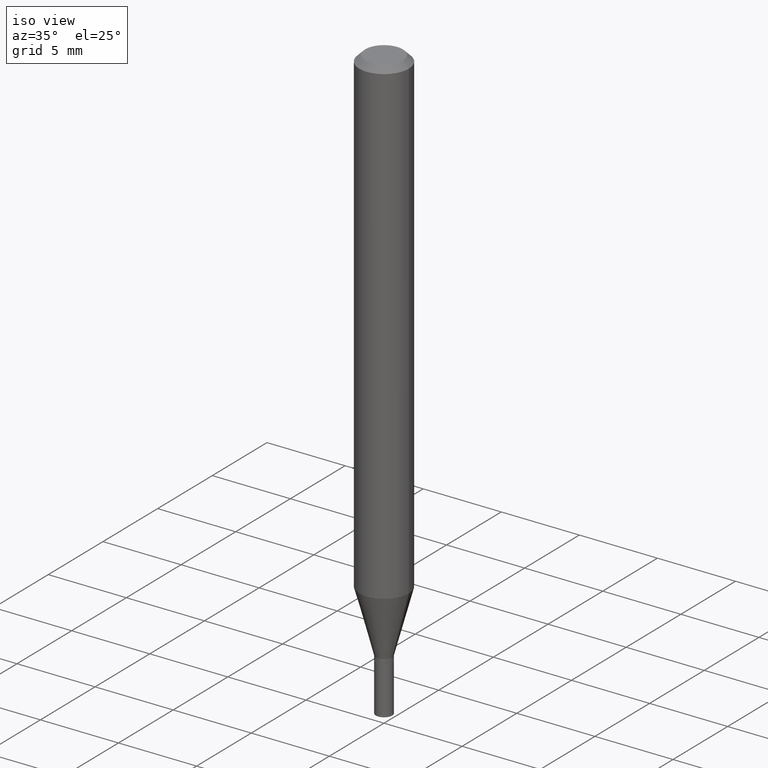
[diagram: clean part render]
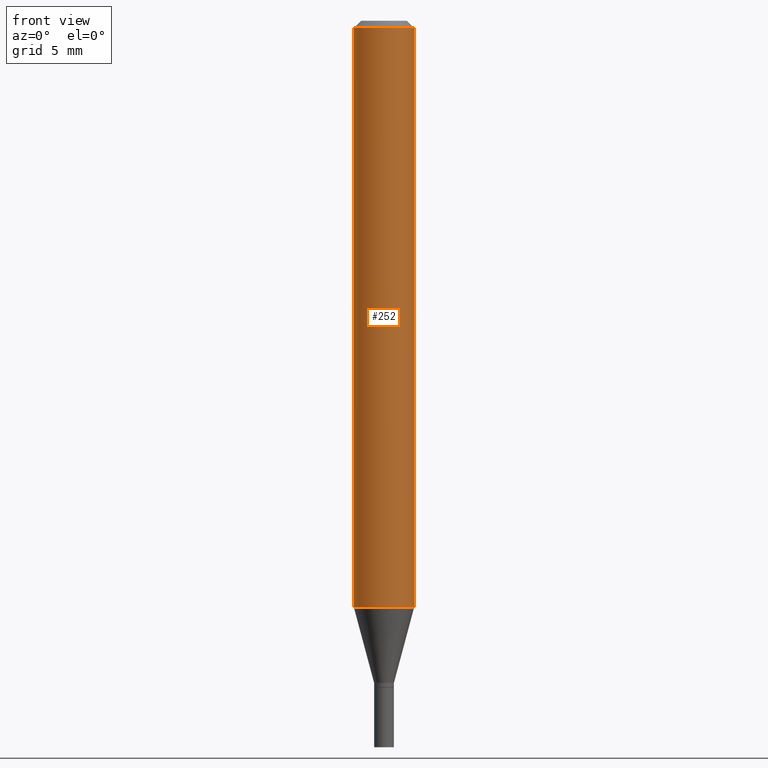
[diagram: tour spotlight — one face highlighted and labeled with its STEP entity id]
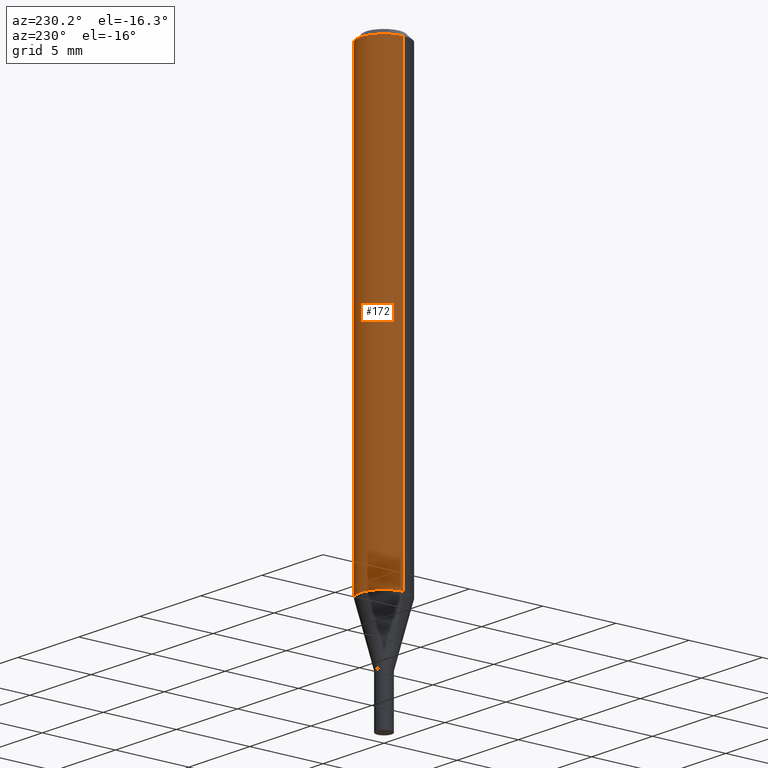
[diagram: tour spotlight — one face highlighted and labeled with its STEP entity id]
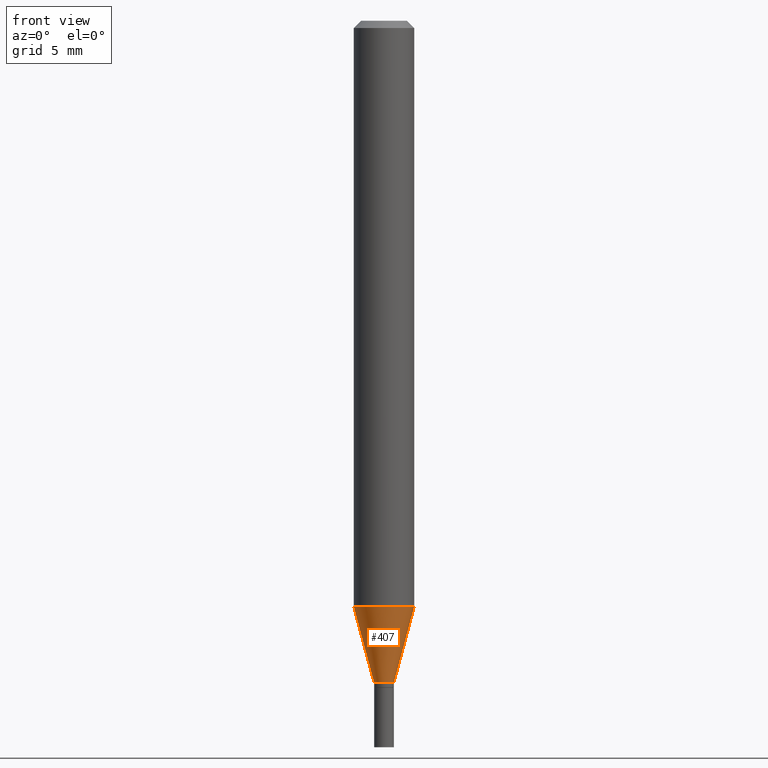
[diagram: tour spotlight — one face highlighted and labeled with its STEP entity id]
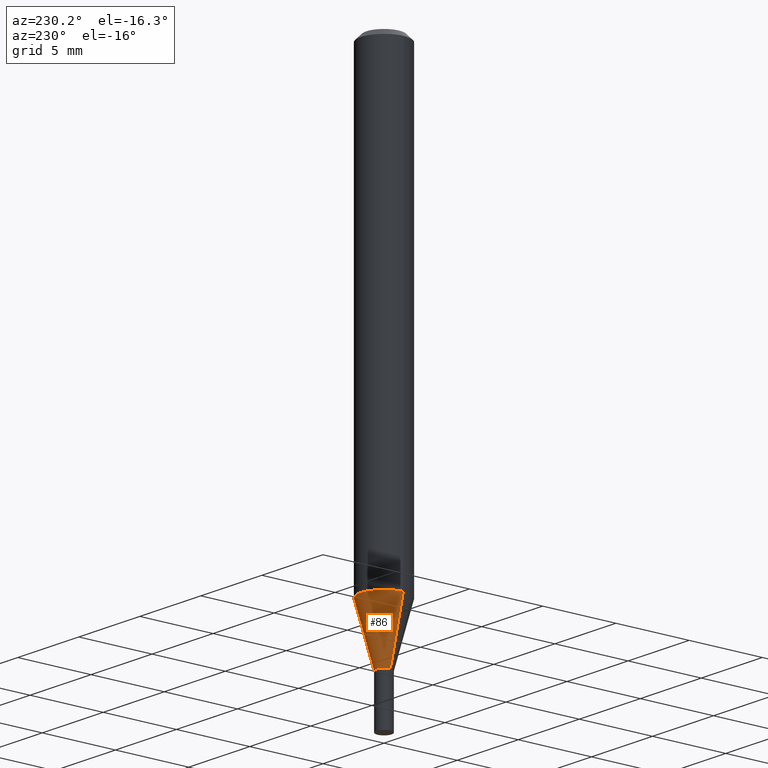
[diagram: tour spotlight — one face highlighted and labeled with its STEP entity id]
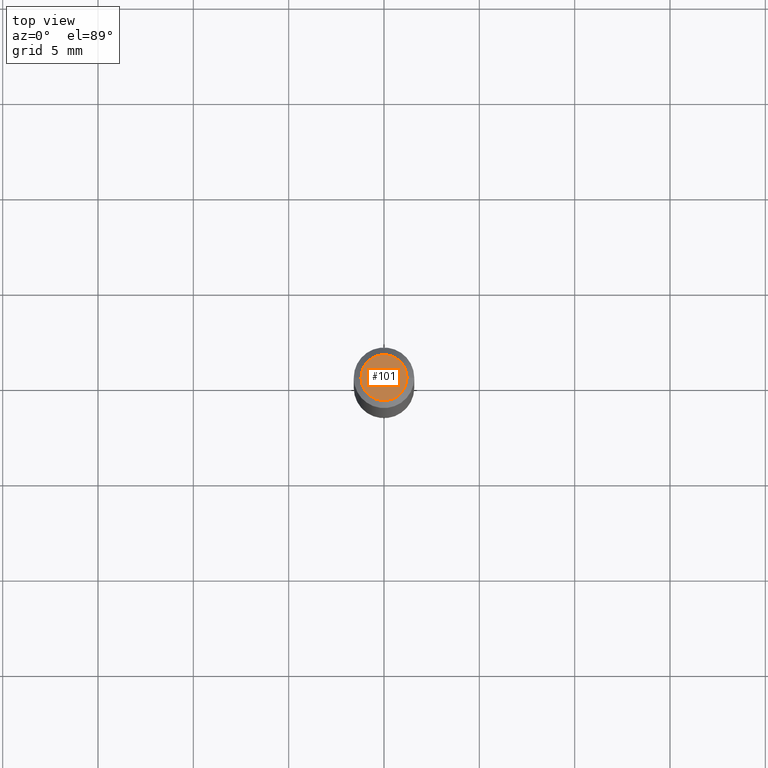
[diagram: tour spotlight — one face highlighted and labeled with its STEP entity id]
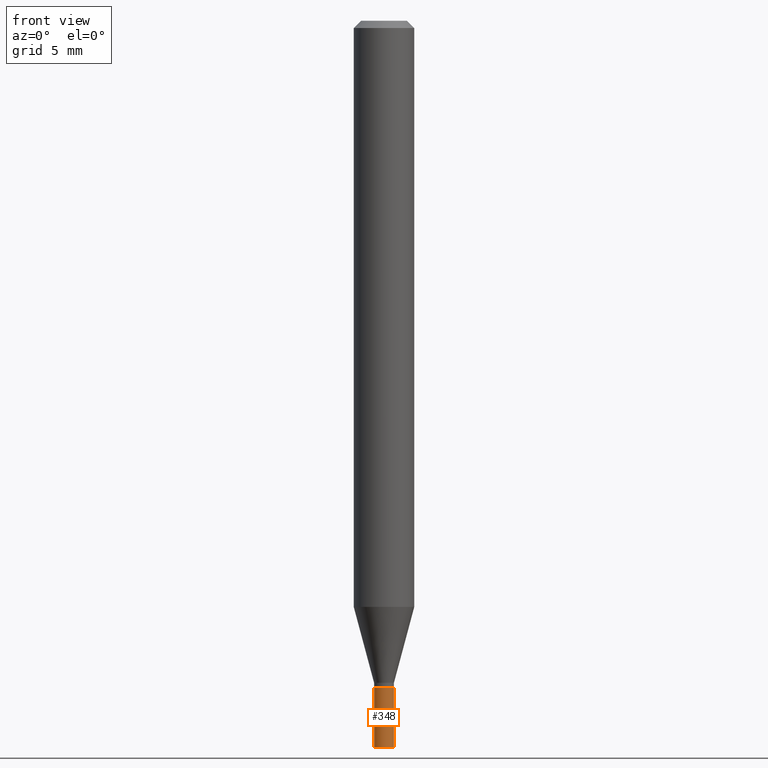
[diagram: tour spotlight — one face highlighted and labeled with its STEP entity id]
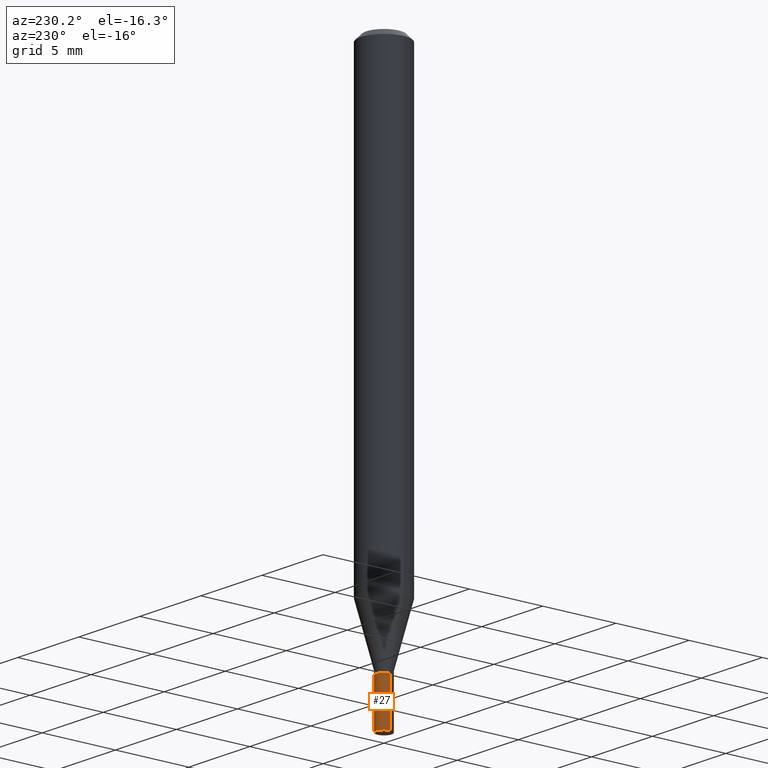
[diagram: tour spotlight — one face highlighted and labeled with its STEP entity id]
A machine part: a face-by-face anatomy tour. The part has 16 B-rep faces; the first image is the clean iso view, then the 7 largest visible faces are spotlighted one at a time (largest first), each with its STEP entity span.

Face 1 — front view, entity #252. In plain terms, the highlighted cylindrical surface (edge-blend (fillet) strip) has radius 1.5875 mm, axis along (-0, 0, 1).
Definition (entity closure, byte-faithful):
#19 = DIRECTION ( 'NONE',  ( 1.000000000000000000, -6.982962677686266711E-15, 0.000000000000000000 ) ) ;
#21 = VERTEX_POINT ( 'NONE', #265 ) ;
#23 = AXIS2_PLACEMENT_3D ( 'NONE', #129, #383, #19 ) ;
#34 = CARTESIAN_POINT ( 'NONE',  ( 2.959638077068758052E-29, -4.225578788688450652E-15, -1.210253866082107610 ) ) ;
#43 = CARTESIAN_POINT ( 'NONE',  ( -0.06250000000000000000, -1.694886294535486249E-15, -0.01499999999999999944 ) ) ;
#52 = ORIENTED_EDGE ( 'NONE', *, *, #400, .F. ) ;
#61 = CARTESIAN_POINT ( 'NONE',  ( 0.06250000000000000000, -4.364351673553916694E-16, 3.047610484872459871E-30 ) ) ;
#80 = CARTESIAN_POINT ( 'NONE',  ( 0.06250000000000000000, -4.888073874380388472E-16, -0.01499999999999999944 ) ) ;
#84 = DIRECTION ( 'NONE',  ( -2.445468806185136597E-29, 3.491481338843145583E-15, 1.000000000000000000 ) ) ;
#88 = AXIS2_PLACEMENT_3D ( 'NONE', #131, #84, #309 ) ;
#90 = CYLINDRICAL_SURFACE ( 'NONE', #88, 0.06250000000000000000 ) ;
#102 = VERTEX_POINT ( 'NONE', #43 ) ;
#112 = CIRCLE ( 'NONE', #350, 0.06250000000000000000 ) ;
#128 = DIRECTION ( 'NONE',  ( -2.445468806185136877E-29, 3.491481338843145188E-15, 1.000000000000000000 ) ) ;
#129 = CARTESIAN_POINT ( 'NONE',  ( 3.668203209277705088E-31, -5.237222008264718399E-17, -0.01499999999999999944 ) ) ;
#131 = CARTESIAN_POINT ( 'NONE',  ( 0.000000000000000000, 0.000000000000000000, 0.000000000000000000 ) ) ;
#158 = CARTESIAN_POINT ( 'NONE',  ( -0.06249999999999999306, -3.781489578838388036E-15, -1.210253866082107610 ) ) ;
#174 = EDGE_LOOP ( 'NONE', ( #52, #313, #336, #341 ) ) ;
#179 = DIRECTION ( 'NONE',  ( -2.445468806185136597E-29, 3.491481338843145583E-15, 1.000000000000000000 ) ) ;
#195 = EDGE_CURVE ( 'NONE', #102, #459, #268, .T. ) ;
#215 = CARTESIAN_POINT ( 'NONE',  ( -0.06250000000000000000, 4.440892098500626162E-16, -3.074334431409316114E-30 ) ) ;
#248 = VECTOR ( 'NONE', #128, 39.37007874015748143 ) ;
#252 = ADVANCED_FACE ( 'NONE', ( #447 ), #90, .T. ) ;
#265 = CARTESIAN_POINT ( 'NONE',  ( 0.06249999999999999306, -4.662013956043841533E-15, -1.210253866082107610 ) ) ;
#268 = CIRCLE ( 'NONE', #23, 0.06250000000000000000 ) ;
#309 = DIRECTION ( 'NONE',  ( 1.000000000000000000, -6.982962677686266711E-15, 4.876176775795935793E-29 ) ) ;
#310 = LINE ( 'NONE', #61, #248 ) ;
#313 = ORIENTED_EDGE ( 'NONE', *, *, #389, .T. ) ;
#323 = EDGE_CURVE ( 'NONE', #21, #459, #310, .T. ) ;
#326 = VECTOR ( 'NONE', #334, 39.37007874015748143 ) ;
#334 = DIRECTION ( 'NONE',  ( -2.445468806185136877E-29, 3.491481338843145188E-15, 1.000000000000000000 ) ) ;
#336 = ORIENTED_EDGE ( 'NONE', *, *, #323, .T. ) ;
#341 = ORIENTED_EDGE ( 'NONE', *, *, #195, .F. ) ;
#350 = AXIS2_PLACEMENT_3D ( 'NONE', #34, #179, #461 ) ;
#383 = DIRECTION ( 'NONE',  ( -2.445468806185136597E-29, 3.491481338843145583E-15, 1.000000000000000000 ) ) ;
#389 = EDGE_CURVE ( 'NONE', #462, #21, #112, .T. ) ;
#393 = LINE ( 'NONE', #215, #326 ) ;
#400 = EDGE_CURVE ( 'NONE', #462, #102, #393, .T. ) ;
#447 = FACE_OUTER_BOUND ( 'NONE', #174, .T. ) ;
#459 = VERTEX_POINT ( 'NONE', #80 ) ;
#461 = DIRECTION ( 'NONE',  ( 1.000000000000000000, -6.982962677686262766E-15, 0.000000000000000000 ) ) ;
#462 = VERTEX_POINT ( 'NONE', #158 ) ;

Face 2 — auxiliary view, entity #172. In plain terms, the highlighted cylindrical surface (edge-blend (fillet) strip) has radius 1.5875 mm, axis along (-0, 0, 1).
Definition (entity closure, byte-faithful):
#14 = AXIS2_PLACEMENT_3D ( 'NONE', #401, #83, #229 ) ;
#15 = CIRCLE ( 'NONE', #458, 0.06250000000000000000 ) ;
#21 = VERTEX_POINT ( 'NONE', #265 ) ;
#37 = EDGE_CURVE ( 'NONE', #459, #102, #390, .T. ) ;
#43 = CARTESIAN_POINT ( 'NONE',  ( -0.06250000000000000000, -1.694886294535486249E-15, -0.01499999999999999944 ) ) ;
#49 = DIRECTION ( 'NONE',  ( 1.000000000000000000, -6.982962677686262766E-15, 0.000000000000000000 ) ) ;
#61 = CARTESIAN_POINT ( 'NONE',  ( 0.06250000000000000000, -4.364351673553916694E-16, 3.047610484872459871E-30 ) ) ;
#80 = CARTESIAN_POINT ( 'NONE',  ( 0.06250000000000000000, -4.888073874380388472E-16, -0.01499999999999999944 ) ) ;
#83 = DIRECTION ( 'NONE',  ( -2.445468806185136597E-29, 3.491481338843145583E-15, 1.000000000000000000 ) ) ;
#102 = VERTEX_POINT ( 'NONE', #43 ) ;
#128 = DIRECTION ( 'NONE',  ( -2.445468806185136877E-29, 3.491481338843145188E-15, 1.000000000000000000 ) ) ;
#150 = EDGE_LOOP ( 'NONE', ( #214, #392, #361, #398 ) ) ;
#158 = CARTESIAN_POINT ( 'NONE',  ( -0.06249999999999999306, -3.781489578838388036E-15, -1.210253866082107610 ) ) ;
#166 = CARTESIAN_POINT ( 'NONE',  ( 2.959638077068758052E-29, -4.225578788688450652E-15, -1.210253866082107610 ) ) ;
#172 = ADVANCED_FACE ( 'NONE', ( #302 ), #193, .T. ) ;
#193 = CYLINDRICAL_SURFACE ( 'NONE', #349, 0.06250000000000000000 ) ;
#204 = EDGE_CURVE ( 'NONE', #21, #462, #15, .T. ) ;
#214 = ORIENTED_EDGE ( 'NONE', *, *, #204, .T. ) ;
#215 = CARTESIAN_POINT ( 'NONE',  ( -0.06250000000000000000, 4.440892098500626162E-16, -3.074334431409316114E-30 ) ) ;
#229 = DIRECTION ( 'NONE',  ( 1.000000000000000000, -6.982962677686266711E-15, 0.000000000000000000 ) ) ;
#248 = VECTOR ( 'NONE', #128, 39.37007874015748143 ) ;
#265 = CARTESIAN_POINT ( 'NONE',  ( 0.06249999999999999306, -4.662013956043841533E-15, -1.210253866082107610 ) ) ;
#281 = CARTESIAN_POINT ( 'NONE',  ( 0.000000000000000000, 0.000000000000000000, 0.000000000000000000 ) ) ;
#300 = DIRECTION ( 'NONE',  ( -2.445468806185136597E-29, 3.491481338843145583E-15, 1.000000000000000000 ) ) ;
#302 = FACE_OUTER_BOUND ( 'NONE', #150, .T. ) ;
#310 = LINE ( 'NONE', #61, #248 ) ;
#323 = EDGE_CURVE ( 'NONE', #21, #459, #310, .T. ) ;
#326 = VECTOR ( 'NONE', #334, 39.37007874015748143 ) ;
#334 = DIRECTION ( 'NONE',  ( -2.445468806185136877E-29, 3.491481338843145188E-15, 1.000000000000000000 ) ) ;
#349 = AXIS2_PLACEMENT_3D ( 'NONE', #281, #419, #351 ) ;
#351 = DIRECTION ( 'NONE',  ( 1.000000000000000000, -6.982962677686266711E-15, 4.876176775795935793E-29 ) ) ;
#361 = ORIENTED_EDGE ( 'NONE', *, *, #37, .F. ) ;
#390 = CIRCLE ( 'NONE', #14, 0.06250000000000000000 ) ;
#392 = ORIENTED_EDGE ( 'NONE', *, *, #400, .T. ) ;
#393 = LINE ( 'NONE', #215, #326 ) ;
#398 = ORIENTED_EDGE ( 'NONE', *, *, #323, .F. ) ;
#400 = EDGE_CURVE ( 'NONE', #462, #102, #393, .T. ) ;
#401 = CARTESIAN_POINT ( 'NONE',  ( 3.668203209277705088E-31, -5.237222008264718399E-17, -0.01499999999999999944 ) ) ;
#419 = DIRECTION ( 'NONE',  ( -2.445468806185136597E-29, 3.491481338843145583E-15, 1.000000000000000000 ) ) ;
#458 = AXIS2_PLACEMENT_3D ( 'NONE', #166, #300, #49 ) ;
#459 = VERTEX_POINT ( 'NONE', #80 ) ;
#462 = VERTEX_POINT ( 'NONE', #158 ) ;

Face 3 — front view, entity #407. In plain terms, the highlighted conical surface has half-angle 15 deg.
Definition (entity closure, byte-faithful):
#5 = EDGE_CURVE ( 'NONE', #395, #257, #318, .T. ) ;
#21 = VERTEX_POINT ( 'NONE', #265 ) ;
#25 = EDGE_LOOP ( 'NONE', ( #325, #217, #198, #67 ) ) ;
#34 = CARTESIAN_POINT ( 'NONE',  ( 2.959638077068758052E-29, -4.225578788688450652E-15, -1.210253866082107610 ) ) ;
#50 = CARTESIAN_POINT ( 'NONE',  ( -0.02049999999999992453, -4.627193729367760599E-15, -1.367000000000000215 ) ) ;
#67 = ORIENTED_EDGE ( 'NONE', *, *, #389, .F. ) ;
#81 = CARTESIAN_POINT ( 'NONE',  ( 3.342955858055081921E-29, -4.772854990198580872E-15, -1.367000000000000215 ) ) ;
#85 = DIRECTION ( 'NONE',  ( 0.2588190451025216277, 1.565188264969619995E-15, 0.9659258262890679791 ) ) ;
#112 = CIRCLE ( 'NONE', #350, 0.06250000000000000000 ) ;
#133 = DIRECTION ( 'NONE',  ( -0.2588190451025216277, 5.211531920934551831E-15, 0.9659258262890679791 ) ) ;
#147 = CONICAL_SURFACE ( 'NONE', #205, 0.02049999999999992453, 0.2617993877991502960 ) ;
#158 = CARTESIAN_POINT ( 'NONE',  ( -0.06249999999999999306, -3.781489578838388036E-15, -1.210253866082107610 ) ) ;
#161 = DIRECTION ( 'NONE',  ( -2.445468806185136597E-29, 3.491481338843145583E-15, 1.000000000000000000 ) ) ;
#179 = DIRECTION ( 'NONE',  ( -2.445468806185136597E-29, 3.491481338843145583E-15, 1.000000000000000000 ) ) ;
#185 = VECTOR ( 'NONE', #133, 39.37007874015748143 ) ;
#198 = ORIENTED_EDGE ( 'NONE', *, *, #416, .T. ) ;
#205 = AXIS2_PLACEMENT_3D ( 'NONE', #448, #161, #381 ) ;
#217 = ORIENTED_EDGE ( 'NONE', *, *, #5, .T. ) ;
#237 = CARTESIAN_POINT ( 'NONE',  ( 0.02049999999999992453, -4.916005725091148898E-15, -1.367000000000000215 ) ) ;
#246 = AXIS2_PLACEMENT_3D ( 'NONE', #81, #266, #408 ) ;
#257 = VERTEX_POINT ( 'NONE', #311 ) ;
#265 = CARTESIAN_POINT ( 'NONE',  ( 0.06249999999999999306, -4.662013956043841533E-15, -1.210253866082107610 ) ) ;
#266 = DIRECTION ( 'NONE',  ( -2.445468806185136597E-29, 3.491481338843145583E-15, 1.000000000000000000 ) ) ;
#288 = CARTESIAN_POINT ( 'NONE',  ( -0.02049999999999992453, -4.204341654103073529E-15, -1.367000000000000215 ) ) ;
#311 = CARTESIAN_POINT ( 'NONE',  ( 0.02049999999999992453, -4.916005725091148898E-15, -1.367000000000000215 ) ) ;
#318 = CIRCLE ( 'NONE', #246, 0.02049999999999992453 ) ;
#325 = ORIENTED_EDGE ( 'NONE', *, *, #464, .F. ) ;
#337 = FACE_OUTER_BOUND ( 'NONE', #25, .T. ) ;
#350 = AXIS2_PLACEMENT_3D ( 'NONE', #34, #179, #461 ) ;
#377 = VECTOR ( 'NONE', #85, 39.37007874015748143 ) ;
#381 = DIRECTION ( 'NONE',  ( 1.000000000000000000, -6.982962677686288010E-15, 0.000000000000000000 ) ) ;
#389 = EDGE_CURVE ( 'NONE', #462, #21, #112, .T. ) ;
#395 = VERTEX_POINT ( 'NONE', #288 ) ;
#404 = LINE ( 'NONE', #237, #377 ) ;
#407 = ADVANCED_FACE ( 'NONE', ( #337 ), #147, .T. ) ;
#408 = DIRECTION ( 'NONE',  ( 1.000000000000000000, -6.982962677686288010E-15, 0.000000000000000000 ) ) ;
#414 = LINE ( 'NONE', #50, #185 ) ;
#416 = EDGE_CURVE ( 'NONE', #257, #21, #404, .T. ) ;
#448 = CARTESIAN_POINT ( 'NONE',  ( 3.342955858055081921E-29, -4.772854990198580872E-15, -1.367000000000000215 ) ) ;
#461 = DIRECTION ( 'NONE',  ( 1.000000000000000000, -6.982962677686262766E-15, 0.000000000000000000 ) ) ;
#462 = VERTEX_POINT ( 'NONE', #158 ) ;
#464 = EDGE_CURVE ( 'NONE', #395, #462, #414, .T. ) ;

Face 4 — auxiliary view, entity #86. In plain terms, the highlighted conical surface has half-angle 15 deg.
Definition (entity closure, byte-faithful):
#3 = ORIENTED_EDGE ( 'NONE', *, *, #204, .F. ) ;
#11 = DIRECTION ( 'NONE',  ( 1.000000000000000000, -6.982962677686288010E-15, 0.000000000000000000 ) ) ;
#15 = CIRCLE ( 'NONE', #458, 0.06250000000000000000 ) ;
#21 = VERTEX_POINT ( 'NONE', #265 ) ;
#29 = CARTESIAN_POINT ( 'NONE',  ( 3.342955858055081921E-29, -4.772854990198580872E-15, -1.367000000000000215 ) ) ;
#49 = DIRECTION ( 'NONE',  ( 1.000000000000000000, -6.982962677686262766E-15, 0.000000000000000000 ) ) ;
#50 = CARTESIAN_POINT ( 'NONE',  ( -0.02049999999999992453, -4.627193729367760599E-15, -1.367000000000000215 ) ) ;
#74 = ORIENTED_EDGE ( 'NONE', *, *, #464, .T. ) ;
#85 = DIRECTION ( 'NONE',  ( 0.2588190451025216277, 1.565188264969619995E-15, 0.9659258262890679791 ) ) ;
#86 = ADVANCED_FACE ( 'NONE', ( #298 ), #267, .T. ) ;
#95 = ORIENTED_EDGE ( 'NONE', *, *, #416, .F. ) ;
#133 = DIRECTION ( 'NONE',  ( -0.2588190451025216277, 5.211531920934551831E-15, 0.9659258262890679791 ) ) ;
#158 = CARTESIAN_POINT ( 'NONE',  ( -0.06249999999999999306, -3.781489578838388036E-15, -1.210253866082107610 ) ) ;
#166 = CARTESIAN_POINT ( 'NONE',  ( 2.959638077068758052E-29, -4.225578788688450652E-15, -1.210253866082107610 ) ) ;
#180 = EDGE_LOOP ( 'NONE', ( #327, #74, #3, #95 ) ) ;
#185 = VECTOR ( 'NONE', #133, 39.37007874015748143 ) ;
#204 = EDGE_CURVE ( 'NONE', #21, #462, #15, .T. ) ;
#219 = DIRECTION ( 'NONE',  ( -2.445468806185136597E-29, 3.491481338843145583E-15, 1.000000000000000000 ) ) ;
#222 = AXIS2_PLACEMENT_3D ( 'NONE', #29, #411, #354 ) ;
#237 = CARTESIAN_POINT ( 'NONE',  ( 0.02049999999999992453, -4.916005725091148898E-15, -1.367000000000000215 ) ) ;
#257 = VERTEX_POINT ( 'NONE', #311 ) ;
#265 = CARTESIAN_POINT ( 'NONE',  ( 0.06249999999999999306, -4.662013956043841533E-15, -1.210253866082107610 ) ) ;
#267 = CONICAL_SURFACE ( 'NONE', #291, 0.02049999999999992453, 0.2617993877991502960 ) ;
#269 = CARTESIAN_POINT ( 'NONE',  ( 3.342955858055081921E-29, -4.772854990198580872E-15, -1.367000000000000215 ) ) ;
#288 = CARTESIAN_POINT ( 'NONE',  ( -0.02049999999999992453, -4.204341654103073529E-15, -1.367000000000000215 ) ) ;
#291 = AXIS2_PLACEMENT_3D ( 'NONE', #269, #219, #11 ) ;
#298 = FACE_OUTER_BOUND ( 'NONE', #180, .T. ) ;
#300 = DIRECTION ( 'NONE',  ( -2.445468806185136597E-29, 3.491481338843145583E-15, 1.000000000000000000 ) ) ;
#311 = CARTESIAN_POINT ( 'NONE',  ( 0.02049999999999992453, -4.916005725091148898E-15, -1.367000000000000215 ) ) ;
#327 = ORIENTED_EDGE ( 'NONE', *, *, #357, .T. ) ;
#354 = DIRECTION ( 'NONE',  ( 1.000000000000000000, -6.982962677686288010E-15, 0.000000000000000000 ) ) ;
#357 = EDGE_CURVE ( 'NONE', #257, #395, #397, .T. ) ;
#377 = VECTOR ( 'NONE', #85, 39.37007874015748143 ) ;
#395 = VERTEX_POINT ( 'NONE', #288 ) ;
#397 = CIRCLE ( 'NONE', #222, 0.02049999999999992453 ) ;
#404 = LINE ( 'NONE', #237, #377 ) ;
#411 = DIRECTION ( 'NONE',  ( -2.445468806185136597E-29, 3.491481338843145583E-15, 1.000000000000000000 ) ) ;
#414 = LINE ( 'NONE', #50, #185 ) ;
#416 = EDGE_CURVE ( 'NONE', #257, #21, #404, .T. ) ;
#458 = AXIS2_PLACEMENT_3D ( 'NONE', #166, #300, #49 ) ;
#462 = VERTEX_POINT ( 'NONE', #158 ) ;
#464 = EDGE_CURVE ( 'NONE', #395, #462, #414, .T. ) ;

Face 5 — top view, entity #101. In plain terms, the highlighted planar face has unit normal (0, -0, -1).
Definition (entity closure, byte-faithful):
#6 = AXIS2_PLACEMENT_3D ( 'NONE', #271, #225, #75 ) ;
#40 = VERTEX_POINT ( 'NONE', #445 ) ;
#75 = DIRECTION ( 'NONE',  ( -1.000000000000000000, 6.982962677686265922E-15, -4.876176775795935793E-29 ) ) ;
#78 = CIRCLE ( 'NONE', #465, 0.04749999999999999362 ) ;
#101 = ADVANCED_FACE ( 'NONE', ( #338 ), #273, .F. ) ;
#109 = EDGE_CURVE ( 'NONE', #40, #466, #331, .T. ) ;
#145 = EDGE_LOOP ( 'NONE', ( #296, #324 ) ) ;
#188 = CARTESIAN_POINT ( 'NONE',  ( 4.865611903635008365E-45, -6.946804277620623666E-31, -1.989643822619527736E-16 ) ) ;
#192 = DIRECTION ( 'NONE',  ( -2.445468806185136597E-29, 3.491481338843145583E-15, 1.000000000000000000 ) ) ;
#225 = DIRECTION ( 'NONE',  ( 2.438088387897960049E-29, -3.491481338843145188E-15, -1.000000000000000000 ) ) ;
#230 = CARTESIAN_POINT ( 'NONE',  ( 4.865611903635008365E-45, -6.946804277620623666E-31, -1.989643822619527736E-16 ) ) ;
#232 = AXIS2_PLACEMENT_3D ( 'NONE', #188, #192, #373 ) ;
#258 = EDGE_CURVE ( 'NONE', #466, #40, #78, .T. ) ;
#271 = CARTESIAN_POINT ( 'NONE',  ( 3.316907271900976096E-16, 0.04749999999999999362, -2.653275547260257586E-16 ) ) ;
#273 = PLANE ( 'NONE',  #6 ) ;
#296 = ORIENTED_EDGE ( 'NONE', *, *, #258, .T. ) ;
#307 = DIRECTION ( 'NONE',  ( 1.000000000000000000, -6.982962677686267499E-15, 4.852736867747366768E-29 ) ) ;
#324 = ORIENTED_EDGE ( 'NONE', *, *, #109, .T. ) ;
#331 = CIRCLE ( 'NONE', #232, 0.04749999999999999362 ) ;
#338 = FACE_OUTER_BOUND ( 'NONE', #145, .T. ) ;
#373 = DIRECTION ( 'NONE',  ( 1.000000000000000000, -6.982962677686267499E-15, 4.852736867747366768E-29 ) ) ;
#413 = DIRECTION ( 'NONE',  ( -2.445468806185136597E-29, 3.491481338843145583E-15, 1.000000000000000000 ) ) ;
#444 = CARTESIAN_POINT ( 'NONE',  ( -0.04749999999999999362, 3.578768372314206562E-16, -1.989643822619551895E-16 ) ) ;
#445 = CARTESIAN_POINT ( 'NONE',  ( 0.04749999999999999362, -4.035134999187581581E-16, -1.989643822619502098E-16 ) ) ;
#465 = AXIS2_PLACEMENT_3D ( 'NONE', #230, #413, #307 ) ;
#466 = VERTEX_POINT ( 'NONE', #444 ) ;

Face 6 — front view, entity #348. In plain terms, the highlighted cylindrical surface (edge-blend (fillet) strip) has radius 0.5207 mm, axis along (-0, 0, 1).
Definition (entity closure, byte-faithful):
#7 = DIRECTION ( 'NONE',  ( -2.445468806185136597E-29, 3.491481338843145583E-15, 1.000000000000000000 ) ) ;
#13 = CARTESIAN_POINT ( 'NONE',  ( 3.367410546116933466E-29, -4.807769803587011733E-15, -1.377000000000000002 ) ) ;
#36 = VERTEX_POINT ( 'NONE', #330 ) ;
#45 = AXIS2_PLACEMENT_3D ( 'NONE', #278, #201, #344 ) ;
#59 = DIRECTION ( 'NONE',  ( -2.445468806185136877E-29, 3.491481338843145188E-15, 1.000000000000000000 ) ) ;
#98 = CIRCLE ( 'NONE', #45, 0.02050000000000000086 ) ;
#99 = CYLINDRICAL_SURFACE ( 'NONE', #305, 0.02050000000000000086 ) ;
#107 = ORIENTED_EDGE ( 'NONE', *, *, #177, .T. ) ;
#125 = EDGE_CURVE ( 'NONE', #261, #135, #355, .T. ) ;
#130 = AXIS2_PLACEMENT_3D ( 'NONE', #13, #7, #159 ) ;
#135 = VERTEX_POINT ( 'NONE', #306 ) ;
#137 = DIRECTION ( 'NONE',  ( -2.445468806185136877E-29, 3.491481338843145188E-15, 1.000000000000000000 ) ) ;
#140 = VECTOR ( 'NONE', #137, 39.37007874015748143 ) ;
#159 = DIRECTION ( 'NONE',  ( 1.000000000000000000, -6.982962677686261977E-15, 0.000000000000000000 ) ) ;
#168 = VECTOR ( 'NONE', #59, 39.37007874015748143 ) ;
#177 = EDGE_CURVE ( 'NONE', #384, #135, #380, .T. ) ;
#190 = EDGE_CURVE ( 'NONE', #36, #384, #98, .T. ) ;
#201 = DIRECTION ( 'NONE',  ( -2.445468806185136597E-29, 3.491481338843145583E-15, 1.000000000000000000 ) ) ;
#211 = ORIENTED_EDGE ( 'NONE', *, *, #343, .F. ) ;
#244 = LINE ( 'NONE', #314, #140 ) ;
#251 = DIRECTION ( 'NONE',  ( -2.445468806185136597E-29, 3.491481338843145583E-15, 1.000000000000000000 ) ) ;
#259 = CARTESIAN_POINT ( 'NONE',  ( 0.02050000000000000086, -5.380372743157286991E-15, -1.500000000000000222 ) ) ;
#261 = VERTEX_POINT ( 'NONE', #376 ) ;
#278 = CARTESIAN_POINT ( 'NONE',  ( 3.668203209277704895E-29, -5.237222008264718177E-15, -1.500000000000000222 ) ) ;
#282 = FACE_OUTER_BOUND ( 'NONE', #375, .T. ) ;
#305 = AXIS2_PLACEMENT_3D ( 'NONE', #452, #251, #388 ) ;
#306 = CARTESIAN_POINT ( 'NONE',  ( 0.02050000000000000086, -4.950920538479579759E-15, -1.377000000000000002 ) ) ;
#314 = CARTESIAN_POINT ( 'NONE',  ( -0.02050000000000000086, 1.456612608308205442E-16, -1.008381693502255795E-30 ) ) ;
#330 = CARTESIAN_POINT ( 'NONE',  ( -0.02050000000000000086, -4.876834645095045076E-15, -1.500000000000000222 ) ) ;
#343 = EDGE_CURVE ( 'NONE', #36, #261, #244, .T. ) ;
#344 = DIRECTION ( 'NONE',  ( 1.000000000000000000, -6.982962677686261977E-15, 0.000000000000000000 ) ) ;
#348 = ADVANCED_FACE ( 'NONE', ( #282 ), #99, .T. ) ;
#355 = CIRCLE ( 'NONE', #130, 0.02050000000000000086 ) ;
#375 = EDGE_LOOP ( 'NONE', ( #211, #453, #107, #434 ) ) ;
#376 = CARTESIAN_POINT ( 'NONE',  ( -0.02050000000000000086, -4.876834645095045076E-15, -1.377000000000000002 ) ) ;
#380 = LINE ( 'NONE', #451, #168 ) ;
#384 = VERTEX_POINT ( 'NONE', #259 ) ;
#388 = DIRECTION ( 'NONE',  ( 1.000000000000000000, -6.982962677686267499E-15, 4.876176775795935232E-29 ) ) ;
#434 = ORIENTED_EDGE ( 'NONE', *, *, #125, .F. ) ;
#451 = CARTESIAN_POINT ( 'NONE',  ( 0.02050000000000000086, -1.431507348925684942E-16, 9.996162390381667465E-31 ) ) ;
#452 = CARTESIAN_POINT ( 'NONE',  ( 0.000000000000000000, 0.000000000000000000, 0.000000000000000000 ) ) ;
#453 = ORIENTED_EDGE ( 'NONE', *, *, #190, .T. ) ;

Face 7 — auxiliary view, entity #27. In plain terms, the highlighted cylindrical surface (edge-blend (fillet) strip) has radius 0.5207 mm, axis along (-0, 0, 1).
Definition (entity closure, byte-faithful):
#17 = FACE_OUTER_BOUND ( 'NONE', #144, .T. ) ;
#27 = ADVANCED_FACE ( 'NONE', ( #17 ), #220, .T. ) ;
#36 = VERTEX_POINT ( 'NONE', #330 ) ;
#38 = ORIENTED_EDGE ( 'NONE', *, *, #72, .F. ) ;
#59 = DIRECTION ( 'NONE',  ( -2.445468806185136877E-29, 3.491481338843145188E-15, 1.000000000000000000 ) ) ;
#72 = EDGE_CURVE ( 'NONE', #135, #261, #175, .T. ) ;
#96 = AXIS2_PLACEMENT_3D ( 'NONE', #399, #442, #119 ) ;
#105 = AXIS2_PLACEMENT_3D ( 'NONE', #347, #173, #280 ) ;
#116 = DIRECTION ( 'NONE',  ( -2.445468806185136597E-29, 3.491481338843145583E-15, 1.000000000000000000 ) ) ;
#119 = DIRECTION ( 'NONE',  ( 1.000000000000000000, -6.982962677686267499E-15, 4.876176775795935232E-29 ) ) ;
#126 = DIRECTION ( 'NONE',  ( 1.000000000000000000, -6.982962677686261977E-15, 0.000000000000000000 ) ) ;
#135 = VERTEX_POINT ( 'NONE', #306 ) ;
#137 = DIRECTION ( 'NONE',  ( -2.445468806185136877E-29, 3.491481338843145188E-15, 1.000000000000000000 ) ) ;
#140 = VECTOR ( 'NONE', #137, 39.37007874015748143 ) ;
#144 = EDGE_LOOP ( 'NONE', ( #430, #396, #38, #169 ) ) ;
#168 = VECTOR ( 'NONE', #59, 39.37007874015748143 ) ;
#169 = ORIENTED_EDGE ( 'NONE', *, *, #177, .F. ) ;
#173 = DIRECTION ( 'NONE',  ( -2.445468806185136597E-29, 3.491481338843145583E-15, 1.000000000000000000 ) ) ;
#175 = CIRCLE ( 'NONE', #423, 0.02050000000000000086 ) ;
#177 = EDGE_CURVE ( 'NONE', #384, #135, #380, .T. ) ;
#220 = CYLINDRICAL_SURFACE ( 'NONE', #96, 0.02050000000000000086 ) ;
#244 = LINE ( 'NONE', #314, #140 ) ;
#259 = CARTESIAN_POINT ( 'NONE',  ( 0.02050000000000000086, -5.380372743157286991E-15, -1.500000000000000222 ) ) ;
#261 = VERTEX_POINT ( 'NONE', #376 ) ;
#280 = DIRECTION ( 'NONE',  ( 1.000000000000000000, -6.982962677686261977E-15, 0.000000000000000000 ) ) ;
#306 = CARTESIAN_POINT ( 'NONE',  ( 0.02050000000000000086, -4.950920538479579759E-15, -1.377000000000000002 ) ) ;
#308 = CARTESIAN_POINT ( 'NONE',  ( 3.367410546116933466E-29, -4.807769803587011733E-15, -1.377000000000000002 ) ) ;
#312 = CIRCLE ( 'NONE', #105, 0.02050000000000000086 ) ;
#314 = CARTESIAN_POINT ( 'NONE',  ( -0.02050000000000000086, 1.456612608308205442E-16, -1.008381693502255795E-30 ) ) ;
#328 = EDGE_CURVE ( 'NONE', #384, #36, #312, .T. ) ;
#330 = CARTESIAN_POINT ( 'NONE',  ( -0.02050000000000000086, -4.876834645095045076E-15, -1.500000000000000222 ) ) ;
#343 = EDGE_CURVE ( 'NONE', #36, #261, #244, .T. ) ;
#347 = CARTESIAN_POINT ( 'NONE',  ( 3.668203209277704895E-29, -5.237222008264718177E-15, -1.500000000000000222 ) ) ;
#376 = CARTESIAN_POINT ( 'NONE',  ( -0.02050000000000000086, -4.876834645095045076E-15, -1.377000000000000002 ) ) ;
#380 = LINE ( 'NONE', #451, #168 ) ;
#384 = VERTEX_POINT ( 'NONE', #259 ) ;
#396 = ORIENTED_EDGE ( 'NONE', *, *, #343, .T. ) ;
#399 = CARTESIAN_POINT ( 'NONE',  ( 0.000000000000000000, 0.000000000000000000, 0.000000000000000000 ) ) ;
#423 = AXIS2_PLACEMENT_3D ( 'NONE', #308, #116, #126 ) ;
#430 = ORIENTED_EDGE ( 'NONE', *, *, #328, .T. ) ;
#442 = DIRECTION ( 'NONE',  ( -2.445468806185136597E-29, 3.491481338843145583E-15, 1.000000000000000000 ) ) ;
#451 = CARTESIAN_POINT ( 'NONE',  ( 0.02050000000000000086, -1.431507348925684942E-16, 9.996162390381667465E-31 ) ) ;